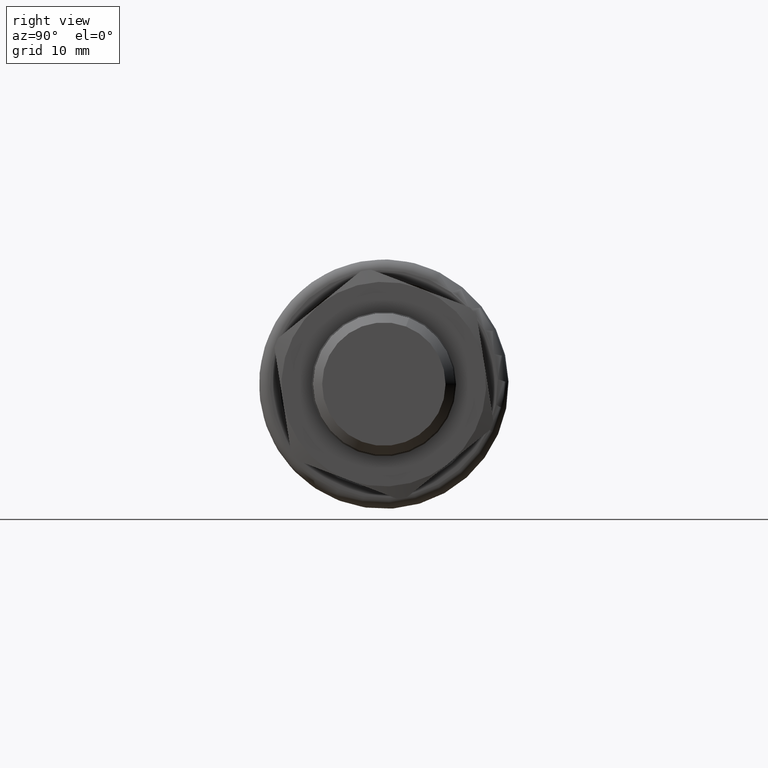
[diagram: clean part render]
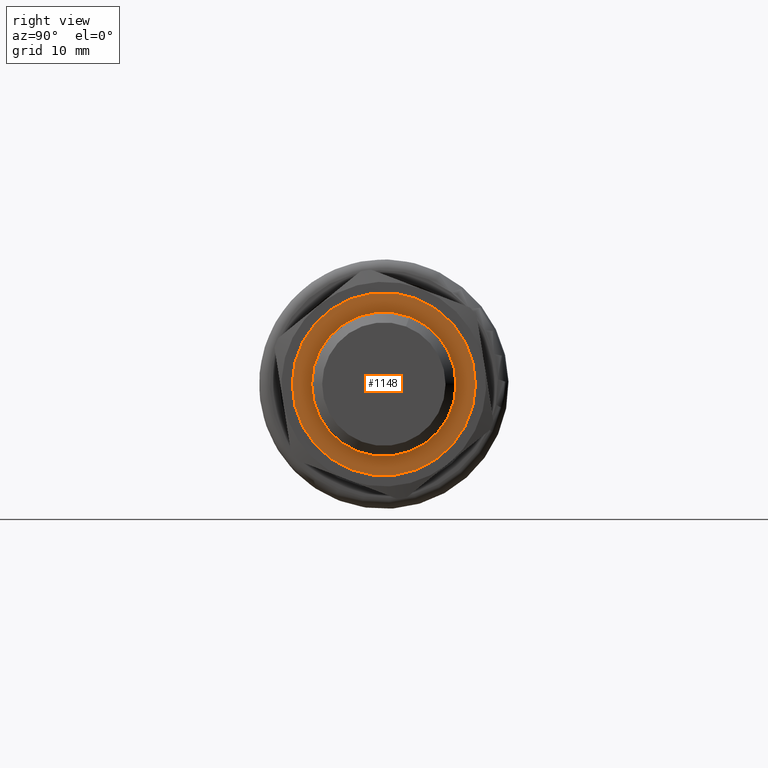
[diagram: same view with one face highlighted and labeled with its STEP entity id]
A machine part, right view. The second image highlights one B-rep face of the part: STEP entity #1148.
In plain terms, the highlighted planar face has unit normal (1, 0, 0).
Its self-contained STEP definition (entity closure, byte-faithful):
#1114=CARTESIAN_POINT('',(49.000000000000021,2.397612199399236,6.25631327071239));
#1115=VERTEX_POINT('',#1114);
#1116=CARTESIAN_POINT('',(49.000000000000021,0.0,0.0));
#1117=DIRECTION('',(-1.0,0.0,0.0));
#1118=DIRECTION('',(0.0,0.357852567074513,0.933778100106327));
#1119=AXIS2_PLACEMENT_3D('',#1116,#1117,#1118);
#1120=CIRCLE('',#1119,6.7);
#1121=EDGE_CURVE('',#1115,#1115,#1120,.T.);
#1129=CARTESIAN_POINT('',(49.000000000000021,2.719679509766297,7.096713560808085));
#1130=DIRECTION('',(1.0,0.0,0.0));
#1131=DIRECTION('',(0.0,0.933778100106327,-0.357852567074513));
#1132=AXIS2_PLACEMENT_3D('',#1129,#1130,#1131);
#1133=PLANE('',#1132);
#1134=CARTESIAN_POINT('',(49.000000000000021,3.041746820133359,7.93711385090378));
#1135=VERTEX_POINT('',#1134);
#1136=CARTESIAN_POINT('',(49.000000000000021,0.0,0.0));
#1137=DIRECTION('',(-1.0,0.0,0.0));
#1138=DIRECTION('',(0.0,0.357852567074513,0.933778100106327));
#1139=AXIS2_PLACEMENT_3D('',#1136,#1137,#1138);
#1140=CIRCLE('',#1139,8.500000000000002);
#1141=EDGE_CURVE('',#1135,#1135,#1140,.T.);
#1142=ORIENTED_EDGE('',*,*,#1141,.F.);
#1143=EDGE_LOOP('',(#1142));
#1144=FACE_OUTER_BOUND('',#1143,.T.);
#1145=ORIENTED_EDGE('',*,*,#1121,.T.);
#1146=EDGE_LOOP('',(#1145));
#1147=FACE_BOUND('',#1146,.T.);
#1148=ADVANCED_FACE('',(#1144,#1147),#1133,.T.);